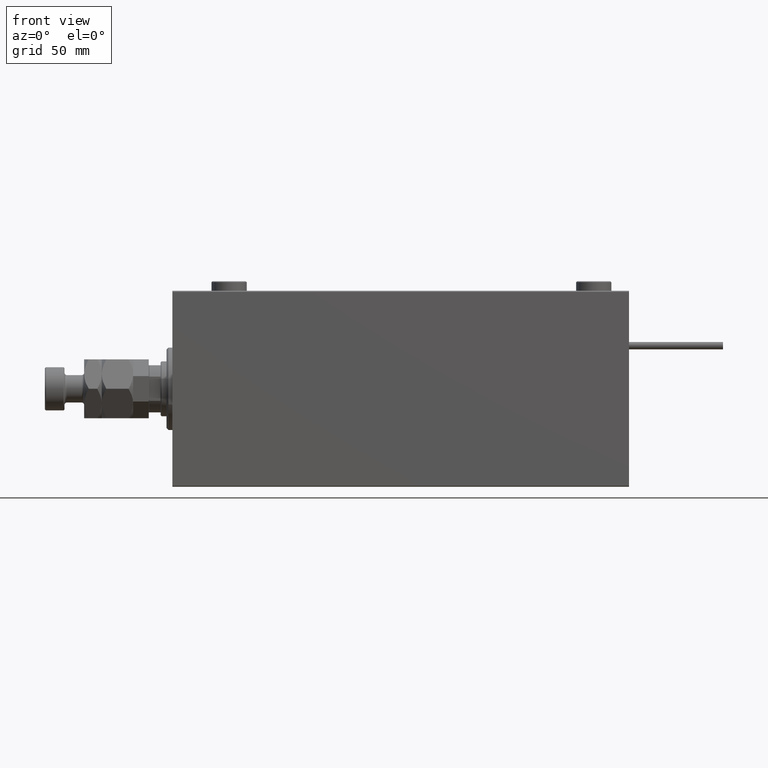
[diagram: clean part render]
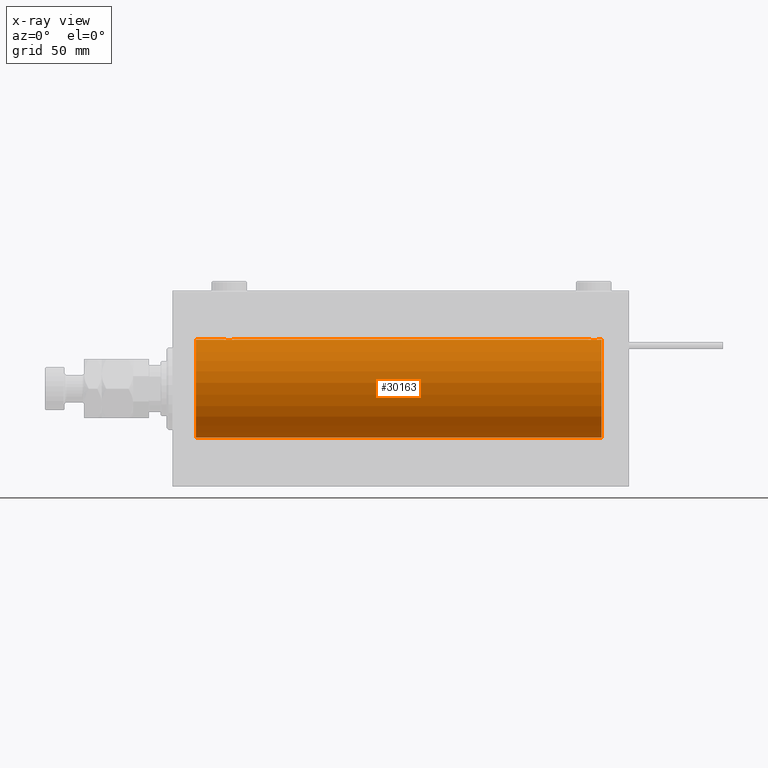
[diagram: x-ray — body ghosted, one internal face saturated and labeled with its STEP entity id]
A machine part, front view, then the same camera in x-ray: the body is ghosted and one INTERNAL B-rep face — a face not visible from any outside direction — is saturated and labeled: STEP entity #30163.
In plain terms, the highlighted cylindrical surface (partial cylindrical patch) has radius 25 mm, axis along (-1, -0, -0).
Its self-contained STEP definition (entity closure, byte-faithful):
#311 = CARTESIAN_POINT ( 'NONE',  ( 212.8317235850605869, -1.255214705003201425, -24.96884293994579096 ) ) ;
#327 = CARTESIAN_POINT ( 'NONE',  ( 217.5000000000000284, 3.061616978453486307E-15, -25.00000000000000000 ) ) ;
#536 = CARTESIAN_POINT ( 'NONE',  ( 30.25383195424503313, -2.169003991399864884, -24.90589728951138682 ) ) ;
#1239 = B_SPLINE_CURVE_WITH_KNOTS ( 'NONE', 3,
 ( #47418, #19831, #18830, #35274, #10474, #40611, #44665, #36567, #53018, #26931, #14796, #52741, #31221, #16079, #48971, #12039, #11485, #27934, #44392, #7426, #23898, #40336, #3384, #36293, #28212, #7699, #20632, #9031, #45460, #5235, #12830, #37101 ),
 .UNSPECIFIED., .F., .F.,
 ( 4, 2, 2, 2, 2, 2, 2, 2, 2, 2, 2, 2, 2, 2, 2, 4 ),
 ( 0.007821024441662296350, 0.008309723826317906223, 0.008798423210973516095, 0.009287122595629124233, 0.009775821980284732371, 0.01026452136494034224, 0.01075322074959595212, 0.01124192013425156025, 0.01173061951890716839, 0.01221931890356277826, 0.01270801828821838814, 0.01319671767287399627, 0.01368541705752960788, 0.01417411644218521602, 0.01466281582684082589, 0.01564021459615201268 ),
 .UNSPECIFIED. ) ;
#1450 = CARTESIAN_POINT ( 'NONE',  ( 27.88963203491135445, -2.245863995402899604, 24.89899750494197050 ) ) ;
#1566 = CARTESIAN_POINT ( 'NONE',  ( 28.67403429960539896, -2.484007091859758543, -24.87630842367763151 ) ) ;
#1587 = CARTESIAN_POINT ( 'NONE',  ( 219.0000000000000000, 0.000000000000000000, 25.00000000000000000 ) ) ;
#1624 = VECTOR ( 'NONE', #15152, 1000.000000000000000 ) ;
#3286 = CARTESIAN_POINT ( 'NONE',  ( 217.2476025101955770, -1.106703319666884511, -24.97594585958023927 ) ) ;
#3384 = CARTESIAN_POINT ( 'NONE',  ( 216.2508402392405173, -2.170728182476725276, 24.90574631553724672 ) ) ;
#3508 = CARTESIAN_POINT ( 'NONE',  ( 29.32947680114268962, -2.483544361357264751, -24.87635491893502149 ) ) ;
#3839 = CARTESIAN_POINT ( 'NONE',  ( 212.4999999999999716, -0.3305063766663960956, -24.99999999999999645 ) ) ;
#4190 = VECTOR ( 'NONE', #36482, 1000.000000000000000 ) ;
#4311 = CARTESIAN_POINT ( 'NONE',  ( 31.24760251019551305, -1.106703319666880514, -24.97594585958023927 ) ) ;
#4367 = CARTESIAN_POINT ( 'NONE',  ( 212.7539362090593897, -1.109818057797430813, -24.97580694515542987 ) ) ;
#4772 = VECTOR ( 'NONE', #42069, 1000.000000000000000 ) ;
#5098 = DIRECTION ( 'NONE',  ( -1.000000000000000000, -0.000000000000000000, -0.000000000000000000 ) ) ;
#5235 = CARTESIAN_POINT ( 'NONE',  ( 217.4334935523974934, -0.6588655613945811895, 24.99312727339969697 ) ) ;
#5611 = CARTESIAN_POINT ( 'NONE',  ( 26.50000000000001066, -0.3305063766663757785, -25.00000000000000355 ) ) ;
#5736 = EDGE_CURVE ( 'NONE', #34522, #27526, #22258, .T. ) ;
#6065 = DIRECTION ( 'NONE',  ( -1.000000000000000000, 0.000000000000000000, 0.000000000000000000 ) ) ;
#6250 = DIRECTION ( 'NONE',  ( -1.000000000000000000, -0.000000000000000000, -0.000000000000000000 ) ) ;
#6277 = CARTESIAN_POINT ( 'NONE',  ( 27.11587617213528745, -1.651251241585102392, 24.94567559498348430 ) ) ;
#6543 = CARTESIAN_POINT ( 'NONE',  ( 26.75239748980449050, -1.106703319666882734, 24.97594585958023572 ) ) ;
#7330 = CARTESIAN_POINT ( 'NONE',  ( 217.4201490922093001, -0.6480119923854175124, -24.99212088949390775 ) ) ;
#7369 = CARTESIAN_POINT ( 'NONE',  ( 219.0000000000000000, 3.061616997868383043E-15, -25.00000000000000000 ) ) ;
#7426 = CARTESIAN_POINT ( 'NONE',  ( 215.6456066614862834, -2.420689345803761938, 24.88254961038872892 ) ) ;
#7606 = CARTESIAN_POINT ( 'NONE',  ( 216.1103679650887841, -2.245863995402900049, -24.89899750494197761 ) ) ;
#7699 = CARTESIAN_POINT ( 'NONE',  ( 216.8818595414864774, -1.653834020452942477, 24.94550385189585029 ) ) ;
#7820 = CARTESIAN_POINT ( 'NONE',  ( 31.48417840057656747, -0.3254210271412188993, -24.99840249400844883 ) ) ;
#7900 = CARTESIAN_POINT ( 'NONE',  ( 31.43349355239748988, -0.6588655613945948453, 24.99312727339971119 ) ) ;
#8415 = CARTESIAN_POINT ( 'NONE',  ( 213.7491597607595111, -2.170728182476739043, -24.90574631553725027 ) ) ;
#8620 = CARTESIAN_POINT ( 'NONE',  ( 30.98749815834397481, -1.525407911884360868, -24.95379469572361941 ) ) ;
#8676 = CARTESIAN_POINT ( 'NONE',  ( 215.1670649517806169, -2.499872792855091674, -24.87469871246082675 ) ) ;
#8880 = CARTESIAN_POINT ( 'NONE',  ( 26.83172358506042698, -1.255214705003176112, -24.96884293994577320 ) ) ;
#9031 = CARTESIAN_POINT ( 'NONE',  ( 217.1682764149396121, -1.255214705003166564, 24.96884293994578385 ) ) ;
#9262 = CARTESIAN_POINT ( 'NONE',  ( 12.00000000000001066, 3.061616997868383043E-15, -25.00000000000000000 ) ) ;
#9542 = CARTESIAN_POINT ( 'NONE',  ( 27.74616804575497042, -2.169003991399869768, 24.90589728951138326 ) ) ;
#9739 = CARTESIAN_POINT ( 'NONE',  ( 219.0000000000000000, 3.061616997868383043E-15, -25.00000000000000000 ) ) ;
#10159 = CARTESIAN_POINT ( 'NONE',  ( 219.0000000000000000, 0.000000000000000000, 25.00000000000000000 ) ) ;
#10474 = CARTESIAN_POINT ( 'NONE',  ( 212.6278403059139919, -0.8058335233485443005, 24.98746277938383287 ) ) ;
#10482 = CARTESIAN_POINT ( 'NONE',  ( 219.0000000000000000, 3.061616997868383043E-15, -25.00000000000000000 ) ) ;
#10575 = CARTESIAN_POINT ( 'NONE',  ( 217.5000000000000284, 3.061616978453486307E-15, -25.00000000000000000 ) ) ;
#10598 = CARTESIAN_POINT ( 'NONE',  ( 29.32596570039459749, -2.484007091859765648, 24.87630842367763506 ) ) ;
#10716 = CARTESIAN_POINT ( 'NONE',  ( 31.50000000000000000, -1.226224324124162886E-14, 25.00000000000000000 ) ) ;
#11413 = CARTESIAN_POINT ( 'NONE',  ( 30.52256774340189338, -1.989585286700249256, 24.92087098724766747 ) ) ;
#11485 = CARTESIAN_POINT ( 'NONE',  ( 214.8329350482194116, -2.499872792855079240, 24.87469871246083031 ) ) ;
#11701 = CARTESIAN_POINT ( 'NONE',  ( 30.98538033717094464, -1.528152964861317464, 24.95362559291378801 ) ) ;
#11887 = CARTESIAN_POINT ( 'NONE',  ( 31.50000000000000000, 3.061616978460191625E-15, -25.00000000000000000 ) ) ;
#12039 = CARTESIAN_POINT ( 'NONE',  ( 214.6705231988573530, -2.483544361357268304, 24.87635491893501793 ) ) ;
#12354 = ORIENTED_EDGE ( 'NONE', *, *, #22179, .T. ) ;
#12480 = CARTESIAN_POINT ( 'NONE',  ( 213.4774322565981777, -1.989585286700266353, -24.92087098724766037 ) ) ;
#12830 = CARTESIAN_POINT ( 'NONE',  ( 217.5000000000000000, -0.3305063766663748903, 24.99999999999999289 ) ) ;
#12842 = EDGE_CURVE ( 'NONE', #15179, #39566, #52094, .T. ) ;
#13466 = CARTESIAN_POINT ( 'NONE',  ( 29.16706495178059910, -2.499872792855075687, -24.87469871246081965 ) ) ;
#13724 = CARTESIAN_POINT ( 'NONE',  ( 27.89276154161590426, -2.247417070759891278, -24.89885693081946272 ) ) ;
#13802 = ORIENTED_EDGE ( 'NONE', *, *, #12842, .F. ) ;
#13862 = CARTESIAN_POINT ( 'NONE',  ( 26.50000000000000355, -1.828402720252098442E-15, -25.00000000000000000 ) ) ;
#14065 = CARTESIAN_POINT ( 'NONE',  ( 12.00000000000001066, 0.000000000000000000, 0.000000000000000000 ) ) ;
#14619 = CARTESIAN_POINT ( 'NONE',  ( 219.0000000000000000, 0.000000000000000000, 25.00000000000000000 ) ) ;
#14712 = AXIS2_PLACEMENT_3D ( 'NONE', #14974, #6065, #43031 ) ;
#14796 = CARTESIAN_POINT ( 'NONE',  ( 213.4746381775692328, -1.987446652080256948, 24.92104239223420592 ) ) ;
#14919 = CARTESIAN_POINT ( 'NONE',  ( 30.65121133559111755, -1.884161199660622676, 24.92916496727982434 ) ) ;
#14974 = CARTESIAN_POINT ( 'NONE',  ( 219.0000000000000000, 0.000000000000000000, 0.000000000000000000 ) ) ;
#15152 = DIRECTION ( 'NONE',  ( -1.000000000000000000, -0.000000000000000000, -0.000000000000000000 ) ) ;
#15178 = LINE ( 'NONE', #27312, #4190 ) ;
#15179 = VERTEX_POINT ( 'NONE', #38263 ) ;
#15712 = CARTESIAN_POINT ( 'NONE',  ( 217.1701129028092794, -1.252049606094334688, -24.96900299967627390 ) ) ;
#15734 = CARTESIAN_POINT ( 'NONE',  ( 30.10723845838409929, -2.247417070759900604, 24.89885693081946272 ) ) ;
#15987 = CARTESIAN_POINT ( 'NONE',  ( 213.0146196628290625, -1.528152964861330343, -24.95362559291378801 ) ) ;
#16079 = CARTESIAN_POINT ( 'NONE',  ( 214.1921165759419239, -2.371528299825747421, 24.88734287464370709 ) ) ;
#16252 = CARTESIAN_POINT ( 'NONE',  ( 212.5000000000000284, -2.120113447159002470E-14, -25.00000000000000000 ) ) ;
#16526 = VERTEX_POINT ( 'NONE', #10159 ) ;
#16990 = CARTESIAN_POINT ( 'NONE',  ( 30.11036796508864555, -2.245863995402895164, -24.89899750494197406 ) ) ;
#18692 = CARTESIAN_POINT ( 'NONE',  ( 28.19211657594193809, -2.371528299825746533, 24.88734287464370709 ) ) ;
#18830 = CARTESIAN_POINT ( 'NONE',  ( 212.5158215994233899, -0.3254210271412208977, 24.99840249400844527 ) ) ;
#19625 = EDGE_LOOP ( 'NONE', ( #29215, #21355, #44588, #31229, #48953, #39647, #24355, #13802, #30290, #31671, #12354, #45965 ) ) ;
#19736 = CARTESIAN_POINT ( 'NONE',  ( 216.9874981583440103, -1.525407911884364420, -24.95379469572361941 ) ) ;
#19831 = CARTESIAN_POINT ( 'NONE',  ( 212.5000000000000000, -0.1631750940176186493, 25.00000000000001066 ) ) ;
#20093 = VECTOR ( 'NONE', #26195, 1000.000000000000000 ) ;
#20224 = CARTESIAN_POINT ( 'NONE',  ( 31.17011290280924740, -1.252049606094333578, -24.96900299967627390 ) ) ;
#20632 = CARTESIAN_POINT ( 'NONE',  ( 216.9853803371709375, -1.528152964861297258, 24.95362559291378446 ) ) ;
#20941 = AXIS2_PLACEMENT_3D ( 'NONE', #14065, #43981, #39655 ) ;
#21355 = ORIENTED_EDGE ( 'NONE', *, *, #41511, .T. ) ;
#21799 = FACE_OUTER_BOUND ( 'NONE', #19625, .T. ) ;
#21819 = LINE ( 'NONE', #1587, #4772 ) ;
#22179 = EDGE_CURVE ( 'NONE', #32074, #35179, #1239, .T. ) ;
#22211 = CARTESIAN_POINT ( 'NONE',  ( 26.57985090779071058, -0.6480119923854222863, 24.99212088949390775 ) ) ;
#22258 = B_SPLINE_CURVE_WITH_KNOTS ( 'NONE', 3,
 ( #10575, #31875, #48332, #7330, #23805, #3286, #15712, #19736, #36205, #52655, #32148, #48609, #7606, #27034, #43487, #22992, #8676, #37269, #44843, #32953, #37533, #36471, #8415, #12480, #24871, #45374, #15987, #311, #4367, #28926, #3839, #16252 ),
 .UNSPECIFIED., .F., .F.,
 ( 4, 2, 2, 2, 2, 2, 2, 2, 2, 2, 2, 2, 2, 2, 2, 4 ),
 ( 0.007821024441662280738, 0.008309723826317890610, 0.008798423210973498748, 0.009287122595629108621, 0.009775821980284716758, 0.01026452136494032663, 0.01075322074959593477, 0.01124192013425154464, 0.01173061951890715451, 0.01221931890356276265, 0.01270801828821837079, 0.01319671767287398240, 0.01368541705752959053, 0.01417411644218519867, 0.01466281582684080854, 0.01564021459615199533 ),
 .UNSPECIFIED. ) ;
#22744 = CARTESIAN_POINT ( 'NONE',  ( 26.51582159942343253, -0.3254210271412221744, 24.99840249400844883 ) ) ;
#22992 = CARTESIAN_POINT ( 'NONE',  ( 215.3294768011427323, -2.483544361357277186, -24.87635491893501083 ) ) ;
#23546 = CARTESIAN_POINT ( 'NONE',  ( 30.25084023924055288, -2.170728182476723500, 24.90574631553725027 ) ) ;
#23805 = CARTESIAN_POINT ( 'NONE',  ( 217.3721596940861218, -0.8058335233485458549, -24.98746277938383287 ) ) ;
#23898 = CARTESIAN_POINT ( 'NONE',  ( 215.8043566091630794, -2.372734907014173000, 24.88722742718433878 ) ) ;
#24100 = CARTESIAN_POINT ( 'NONE',  ( 30.88185954148645251, -1.653834020452944475, 24.94550385189585029 ) ) ;
#24355 = ORIENTED_EDGE ( 'NONE', *, *, #30754, .T. ) ;
#24871 = CARTESIAN_POINT ( 'NONE',  ( 213.3487886644088860, -1.884161199660634667, -24.92916496727982079 ) ) ;
#25438 = EDGE_CURVE ( 'NONE', #38376, #16526, #37957, .T. ) ;
#25865 = CARTESIAN_POINT ( 'NONE',  ( 28.35439333851368815, -2.420689345803754833, -24.88254961038873958 ) ) ;
#25868 = DIRECTION ( 'NONE',  ( 0.000000000000000000, 0.000000000000000000, 1.000000000000000000 ) ) ;
#25998 = CARTESIAN_POINT ( 'NONE',  ( 28.83293504821939379, -2.499872792855082348, 24.87469871246083031 ) ) ;
#26195 = DIRECTION ( 'NONE',  ( -1.000000000000000000, -0.000000000000000000, -0.000000000000000000 ) ) ;
#26931 = CARTESIAN_POINT ( 'NONE',  ( 213.3461666385066735, -1.881857718844717642, 24.92933960374833546 ) ) ;
#27034 = CARTESIAN_POINT ( 'NONE',  ( 215.8078834240581898, -2.371528299825750974, -24.88734287464371420 ) ) ;
#27075 = DIRECTION ( 'NONE',  ( -1.000000000000000000, -0.000000000000000000, -0.000000000000000000 ) ) ;
#27312 = CARTESIAN_POINT ( 'NONE',  ( 219.0000000000000000, 0.000000000000000000, 25.00000000000000000 ) ) ;
#27526 = VERTEX_POINT ( 'NONE', #38677 ) ;
#27883 = LINE ( 'NONE', #7369, #48140 ) ;
#27934 = CARTESIAN_POINT ( 'NONE',  ( 215.1632358963854870, -2.500125740978193178, 24.87467329022544504 ) ) ;
#28212 = CARTESIAN_POINT ( 'NONE',  ( 216.6512113355911993, -1.884161199660621344, 24.92916496727982789 ) ) ;
#28414 = CARTESIAN_POINT ( 'NONE',  ( 31.16827641493956591, -1.255214705003188547, 24.96884293994578030 ) ) ;
#28926 = CARTESIAN_POINT ( 'NONE',  ( 212.5665064476025918, -0.6588655613946002854, -24.99312727339970763 ) ) ;
#29215 = ORIENTED_EDGE ( 'NONE', *, *, #25438, .F. ) ;
#29402 = CARTESIAN_POINT ( 'NONE',  ( 219.0000000000000000, 0.000000000000000000, 0.000000000000000000 ) ) ;
#30163 = ADVANCED_FACE ( 'NONE', ( #21799 ), #41527, .F. ) ;
#30169 = CARTESIAN_POINT ( 'NONE',  ( 27.74915976075944712, -2.170728182476714174, -24.90574631553725027 ) ) ;
#30242 = LINE ( 'NONE', #9739, #20093 ) ;
#30290 = ORIENTED_EDGE ( 'NONE', *, *, #35400, .T. ) ;
#30406 = CIRCLE ( 'NONE', #20941, 25.00000000000000000 ) ;
#30563 = CARTESIAN_POINT ( 'NONE',  ( 26.50000000000000355, -1.940558383798427991E-23, 25.00000000000000000 ) ) ;
#30690 = CARTESIAN_POINT ( 'NONE',  ( 27.11814045851354393, -1.653834020452933151, -24.94550385189584674 ) ) ;
#30742 = EDGE_CURVE ( 'NONE', #49457, #52254, #30242, .T. ) ;
#30754 = EDGE_CURVE ( 'NONE', #52254, #39566, #30406, .T. ) ;
#30833 = CARTESIAN_POINT ( 'NONE',  ( 212.5000000000000284, -1.941505016884693205E-23, 25.00000000000000000 ) ) ;
#31087 = CARTESIAN_POINT ( 'NONE',  ( 29.16323589638541947, -2.500125740978196731, 24.87467329022545215 ) ) ;
#31221 = CARTESIAN_POINT ( 'NONE',  ( 213.8896320349114433, -2.245863995402900049, 24.89899750494197050 ) ) ;
#31229 = ORIENTED_EDGE ( 'NONE', *, *, #46609, .T. ) ;
#31671 = ORIENTED_EDGE ( 'NONE', *, *, #38180, .F. ) ;
#31875 = CARTESIAN_POINT ( 'NONE',  ( 217.5000000000000284, -0.1631750940176159292, -25.00000000000000711 ) ) ;
#32074 = VERTEX_POINT ( 'NONE', #30833 ) ;
#32148 = CARTESIAN_POINT ( 'NONE',  ( 216.5253618224308241, -1.987446652080269383, -24.92104239223419881 ) ) ;
#32537 = B_SPLINE_CURVE_WITH_KNOTS ( 'NONE', 3,
 ( #30563, #38651, #22744, #22211, #47538, #6543, #43243, #50798, #6277, #46751, #39188, #9542, #1450, #18692, #35135, #51592, #25998, #31087, #10598, #42442, #44325, #15734, #23546, #11413, #14919, #24100, #11701, #28414, #47809, #7900, #48353, #51858 ),
 .UNSPECIFIED., .F., .F.,
 ( 4, 2, 2, 2, 2, 2, 2, 2, 2, 2, 2, 2, 2, 2, 2, 4 ),
 ( 0.007821024441662209614, 0.008309723826317810813, 0.008798423210973412012, 0.009287122595629013211, 0.009775821980284614410, 0.01026452136494021561, 0.01075322074959581681, 0.01124192013425141801, 0.01173061951890701921, 0.01221931890356262040, 0.01270801828821822160, 0.01319671767287382107, 0.01368541705752942227, 0.01417411644218502347, 0.01466281582684062466, 0.01564021459615182533 ),
 .UNSPECIFIED. ) ;
#32953 = CARTESIAN_POINT ( 'NONE',  ( 214.3543933385136597, -2.420689345803774817, -24.88254961038872892 ) ) ;
#33433 = CARTESIAN_POINT ( 'NONE',  ( 29.80788342405805835, -2.371528299825740760, -24.88734287464371064 ) ) ;
#33942 = CARTESIAN_POINT ( 'NONE',  ( 27.34878866440888601, -1.884161199660611796, -24.92916496727982434 ) ) ;
#34129 = VECTOR ( 'NONE', #6250, 1000.000000000000000 ) ;
#34195 = CARTESIAN_POINT ( 'NONE',  ( 27.01461966282905891, -1.528152964861306584, -24.95362559291379156 ) ) ;
#34522 = VERTEX_POINT ( 'NONE', #327 ) ;
#34840 = CARTESIAN_POINT ( 'NONE',  ( 219.0000000000000000, 3.061616997868383043E-15, -25.00000000000000000 ) ) ;
#35135 = CARTESIAN_POINT ( 'NONE',  ( 28.35095609830903385, -2.419770561643910245, 24.88263927071751169 ) ) ;
#35179 = VERTEX_POINT ( 'NONE', #48480 ) ;
#35274 = CARTESIAN_POINT ( 'NONE',  ( 212.5798509077907852, -0.6480119923854213981, 24.99212088949391131 ) ) ;
#35400 = EDGE_CURVE ( 'NONE', #15179, #43837, #32537, .T. ) ;
#35427 = B_SPLINE_CURVE_WITH_KNOTS ( 'NONE', 3,
 ( #11887, #41264, #7820, #49618, #40728, #4311, #20224, #8620, #36690, #40462, #37482, #536, #16990, #33433, #49876, #3508, #13466, #50398, #1566, #25865, #37988, #13724, #30169, #41786, #33942, #30690, #34195, #8880, #42840, #42307, #5611, #46614 ),
 .UNSPECIFIED., .F., .F.,
 ( 4, 2, 2, 2, 2, 2, 2, 2, 2, 2, 2, 2, 2, 2, 2, 4 ),
 ( 0.007821024441662299820, 0.008309723826317909692, 0.008798423210973517830, 0.009287122595629124233, 0.009775821980284728902, 0.01026452136494033357, 0.01075322074959593997, 0.01124192013425154464, 0.01173061951890715104, 0.01221931890356275571, 0.01270801828821836038, 0.01319671767287396852, 0.01368541705752957319, 0.01417411644218517959, 0.01466281582684078426, 0.01564021459615199533 ),
 .UNSPECIFIED. ) ;
#36205 = CARTESIAN_POINT ( 'NONE',  ( 216.8841238278646699, -1.651251241585114382, -24.94567559498349141 ) ) ;
#36293 = CARTESIAN_POINT ( 'NONE',  ( 216.5225677434019644, -1.989585286700252809, 24.92087098724766747 ) ) ;
#36317 = CARTESIAN_POINT ( 'NONE',  ( 12.00000000000001066, 0.000000000000000000, 25.00000000000000000 ) ) ;
#36471 = CARTESIAN_POINT ( 'NONE',  ( 213.8927615416158687, -2.247417070759907709, -24.89885693081946982 ) ) ;
#36482 = DIRECTION ( 'NONE',  ( -1.000000000000000000, -0.000000000000000000, -0.000000000000000000 ) ) ;
#36567 = CARTESIAN_POINT ( 'NONE',  ( 213.0125018416559897, -1.525407911884356205, 24.95379469572361586 ) ) ;
#36690 = CARTESIAN_POINT ( 'NONE',  ( 30.88412382786471611, -1.651251241585095508, -24.94567559498348785 ) ) ;
#37101 = CARTESIAN_POINT ( 'NONE',  ( 217.5000000000000284, 1.404322005998729010E-15, 25.00000000000000000 ) ) ;
#37269 = CARTESIAN_POINT ( 'NONE',  ( 214.8367641036145415, -2.500125740978206057, -24.87467329022544504 ) ) ;
#37482 = CARTESIAN_POINT ( 'NONE',  ( 30.52536182243080631, -1.987446652080256504, -24.92104239223419881 ) ) ;
#37533 = CARTESIAN_POINT ( 'NONE',  ( 214.1956433908369775, -2.372734907014184103, -24.88722742718433167 ) ) ;
#37957 = CIRCLE ( 'NONE', #14712, 25.00000000000000000 ) ;
#37988 = CARTESIAN_POINT ( 'NONE',  ( 28.19564339083697746, -2.372734907014167671, -24.88722742718433167 ) ) ;
#38180 = EDGE_CURVE ( 'NONE', #32074, #43837, #21819, .T. ) ;
#38263 = CARTESIAN_POINT ( 'NONE',  ( 26.50000000000000355, -1.940558383798427991E-23, 25.00000000000000000 ) ) ;
#38376 = VERTEX_POINT ( 'NONE', #10482 ) ;
#38651 = CARTESIAN_POINT ( 'NONE',  ( 26.50000000000000711, -0.1631750940176201481, 25.00000000000000711 ) ) ;
#38677 = CARTESIAN_POINT ( 'NONE',  ( 212.5000000000000284, -2.120113447159002470E-14, -25.00000000000000000 ) ) ;
#39188 = CARTESIAN_POINT ( 'NONE',  ( 27.47463817756919013, -1.987446652080261167, 24.92104239223420592 ) ) ;
#39566 = VERTEX_POINT ( 'NONE', #36317 ) ;
#39647 = ORIENTED_EDGE ( 'NONE', *, *, #30742, .T. ) ;
#39655 = DIRECTION ( 'NONE',  ( 0.000000000000000000, 0.000000000000000000, 1.000000000000000000 ) ) ;
#40336 = CARTESIAN_POINT ( 'NONE',  ( 216.1072384583841028, -2.247417070759893942, 24.89885693081946627 ) ) ;
#40462 = CARTESIAN_POINT ( 'NONE',  ( 30.65383336149337623, -1.881857718844709870, -24.92933960374833191 ) ) ;
#40611 = CARTESIAN_POINT ( 'NONE',  ( 212.7523974898045367, -1.106703319666880958, 24.97594585958023217 ) ) ;
#40728 = CARTESIAN_POINT ( 'NONE',  ( 31.37215969408608274, -0.8058335233485438565, -24.98746277938383997 ) ) ;
#41264 = CARTESIAN_POINT ( 'NONE',  ( 31.49999999999999289, -0.1631750940176170117, -25.00000000000000711 ) ) ;
#41511 = EDGE_CURVE ( 'NONE', #38376, #34522, #51833, .T. ) ;
#41527 = CYLINDRICAL_SURFACE ( 'NONE', #47604, 25.00000000000000000 ) ;
#41786 = CARTESIAN_POINT ( 'NONE',  ( 27.47743225659810307, -1.989585286700239708, -24.92087098724766392 ) ) ;
#42069 = DIRECTION ( 'NONE',  ( -1.000000000000000000, -0.000000000000000000, -0.000000000000000000 ) ) ;
#42307 = CARTESIAN_POINT ( 'NONE',  ( 26.56650644760253499, -0.6588655613945862966, -24.99312727339971119 ) ) ;
#42442 = CARTESIAN_POINT ( 'NONE',  ( 29.64560666148631185, -2.420689345803761938, 24.88254961038873958 ) ) ;
#42840 = CARTESIAN_POINT ( 'NONE',  ( 26.75393620905933645, -1.109818057797413715, -24.97580694515542277 ) ) ;
#43031 = DIRECTION ( 'NONE',  ( 0.000000000000000000, 0.000000000000000000, 1.000000000000000000 ) ) ;
#43243 = CARTESIAN_POINT ( 'NONE',  ( 26.82988709719075970, -1.252049606094338907, 24.96900299967627390 ) ) ;
#43487 = CARTESIAN_POINT ( 'NONE',  ( 215.6490439016910159, -2.419770561643912021, -24.88263927071751169 ) ) ;
#43781 = CARTESIAN_POINT ( 'NONE',  ( 31.50000000000000000, 3.061616978460191625E-15, -25.00000000000000000 ) ) ;
#43837 = VERTEX_POINT ( 'NONE', #10716 ) ;
#43981 = DIRECTION ( 'NONE',  ( -1.000000000000000000, 0.000000000000000000, 0.000000000000000000 ) ) ;
#44325 = CARTESIAN_POINT ( 'NONE',  ( 29.80435660916301899, -2.372734907014176997, 24.88722742718433878 ) ) ;
#44392 = CARTESIAN_POINT ( 'NONE',  ( 215.3259657003945620, -2.484007091859763872, 24.87630842367762796 ) ) ;
#44588 = ORIENTED_EDGE ( 'NONE', *, *, #5736, .T. ) ;
#44665 = CARTESIAN_POINT ( 'NONE',  ( 212.8298870971908059, -1.252049606094326695, 24.96900299967627390 ) ) ;
#44843 = CARTESIAN_POINT ( 'NONE',  ( 214.6740342996054096, -2.484007091859776750, -24.87630842367763151 ) ) ;
#45336 = EDGE_CURVE ( 'NONE', #16526, #35179, #15178, .T. ) ;
#45374 = CARTESIAN_POINT ( 'NONE',  ( 213.1181404585135795, -1.653834020452956688, -24.94550385189584674 ) ) ;
#45460 = CARTESIAN_POINT ( 'NONE',  ( 217.2460637909407808, -1.109818057797409718, 24.97580694515542632 ) ) ;
#45965 = ORIENTED_EDGE ( 'NONE', *, *, #45336, .F. ) ;
#46609 = EDGE_CURVE ( 'NONE', #27526, #50263, #27883, .T. ) ;
#46614 = CARTESIAN_POINT ( 'NONE',  ( 26.50000000000000355, -1.828402720252098442E-15, -25.00000000000000000 ) ) ;
#46751 = CARTESIAN_POINT ( 'NONE',  ( 27.34616663850662377, -1.881857718844717642, 24.92933960374834257 ) ) ;
#47418 = CARTESIAN_POINT ( 'NONE',  ( 212.5000000000000284, -1.941505016884693205E-23, 25.00000000000000000 ) ) ;
#47538 = CARTESIAN_POINT ( 'NONE',  ( 26.62784030591392792, -0.8058335233485458549, 24.98746277938383642 ) ) ;
#47604 = AXIS2_PLACEMENT_3D ( 'NONE', #29402, #5098, #25868 ) ;
#47809 = CARTESIAN_POINT ( 'NONE',  ( 31.24606379094066000, -1.109818057797423929, 24.97580694515541921 ) ) ;
#48140 = VECTOR ( 'NONE', #27075, 1000.000000000000000 ) ;
#48332 = CARTESIAN_POINT ( 'NONE',  ( 217.4841784005766385, -0.3254210271412166788, -24.99840249400845238 ) ) ;
#48353 = CARTESIAN_POINT ( 'NONE',  ( 31.49999999999994316, -0.3305063766663668412, 25.00000000000000000 ) ) ;
#48480 = CARTESIAN_POINT ( 'NONE',  ( 217.5000000000000284, 1.404322005998729010E-15, 25.00000000000000000 ) ) ;
#48609 = CARTESIAN_POINT ( 'NONE',  ( 216.2538319542450722, -2.169003991399879538, -24.90589728951138682 ) ) ;
#48953 = ORIENTED_EDGE ( 'NONE', *, *, #49554, .T. ) ;
#48971 = CARTESIAN_POINT ( 'NONE',  ( 214.3509560983090694, -2.419770561643906248, 24.88263927071751169 ) ) ;
#49457 = VERTEX_POINT ( 'NONE', #13862 ) ;
#49554 = EDGE_CURVE ( 'NONE', #50263, #49457, #35427, .T. ) ;
#49618 = CARTESIAN_POINT ( 'NONE',  ( 31.42014909220928942, -0.6480119923854186226, -24.99212088949390420 ) ) ;
#49876 = CARTESIAN_POINT ( 'NONE',  ( 29.64904390169096970, -2.419770561643902695, -24.88263927071750459 ) ) ;
#50263 = VERTEX_POINT ( 'NONE', #43781 ) ;
#50398 = CARTESIAN_POINT ( 'NONE',  ( 28.83676410361456632, -2.500125740978188738, -24.87467329022545215 ) ) ;
#50798 = CARTESIAN_POINT ( 'NONE',  ( 27.01250184165601098, -1.525407911884366197, 24.95379469572361941 ) ) ;
#51592 = CARTESIAN_POINT ( 'NONE',  ( 28.67052319885731038, -2.483544361357272301, 24.87635491893501793 ) ) ;
#51833 = LINE ( 'NONE', #34840, #34129 ) ;
#51858 = CARTESIAN_POINT ( 'NONE',  ( 31.50000000000000000, -1.226224324124162886E-14, 25.00000000000000000 ) ) ;
#52094 = LINE ( 'NONE', #14619, #1624 ) ;
#52254 = VERTEX_POINT ( 'NONE', #9262 ) ;
#52655 = CARTESIAN_POINT ( 'NONE',  ( 216.6538333614934118, -1.881857718844729632, -24.92933960374833546 ) ) ;
#52741 = CARTESIAN_POINT ( 'NONE',  ( 213.7461680457550131, -2.169003991399866216, 24.90589728951138682 ) ) ;
#53018 = CARTESIAN_POINT ( 'NONE',  ( 213.1158761721353301, -1.651251241585103724, 24.94567559498349141 ) ) ;